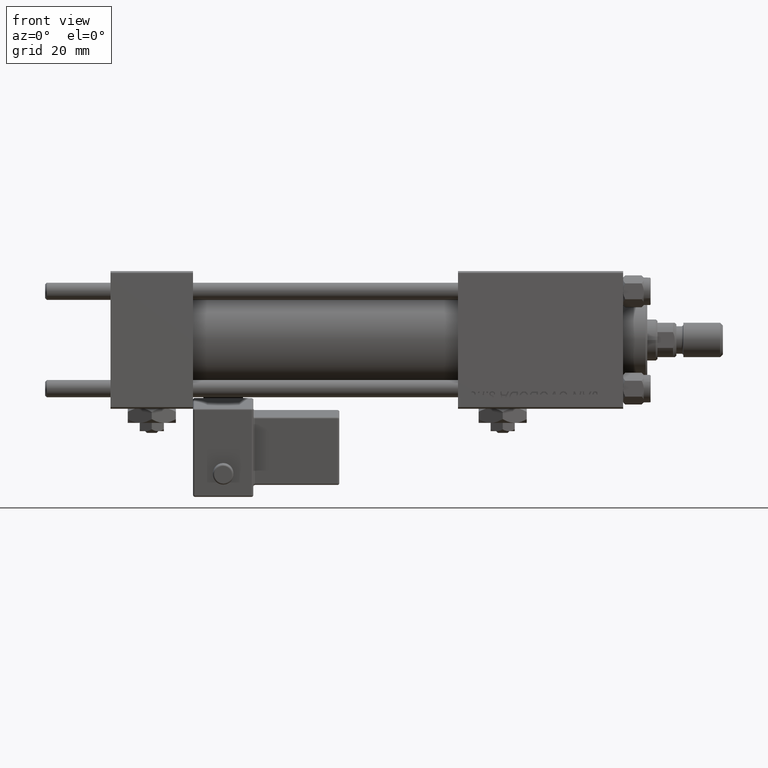
[diagram: clean part render]
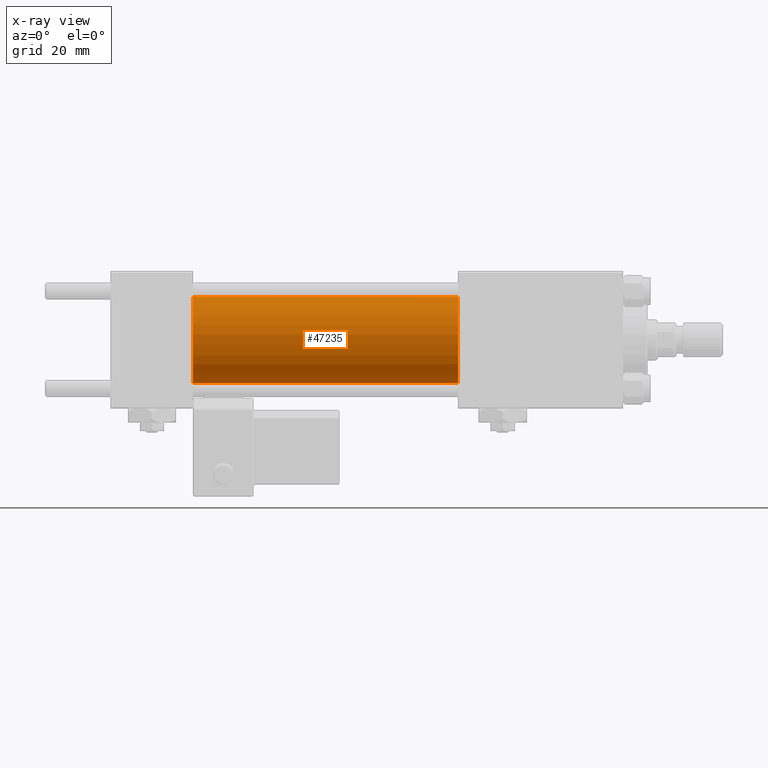
[diagram: x-ray — body ghosted, one internal face saturated and labeled with its STEP entity id]
A machine part, front view, then the same camera in x-ray: the body is ghosted and one INTERNAL B-rep face — a face not visible from any outside direction — is saturated and labeled: STEP entity #47235.
In plain terms, the highlighted cylindrical surface (partial cylindrical patch) has radius 12.5 mm, axis along (-1, -0, -0).
Its self-contained STEP definition (entity closure, byte-faithful):
#1038 = CARTESIAN_POINT ( 'NONE',  ( 101.0000000000000000, 0.000000000000000000, 12.49999999999999645 ) ) ;
#1207 = VERTEX_POINT ( 'NONE', #24627 ) ;
#1759 = CARTESIAN_POINT ( 'NONE',  ( 24.00000000000000000, 1.530808498934191127E-15, -12.49999999999999645 ) ) ;
#5326 = CYLINDRICAL_SURFACE ( 'NONE', #25744, 12.49999999999999645 ) ;
#7571 = ORIENTED_EDGE ( 'NONE', *, *, #46795, .F. ) ;
#10951 = CARTESIAN_POINT ( 'NONE',  ( 101.0000000000000000, 0.000000000000000000, 12.49999999999999645 ) ) ;
#11726 = CARTESIAN_POINT ( 'NONE',  ( 101.0000000000000000, 1.530808498934191127E-15, -12.49999999999999645 ) ) ;
#13883 = VERTEX_POINT ( 'NONE', #46046 ) ;
#15317 = EDGE_CURVE ( 'NONE', #13883, #19640, #43632, .T. ) ;
#17326 = DIRECTION ( 'NONE',  ( 1.000000000000000000, 0.000000000000000000, 0.000000000000000000 ) ) ;
#19640 = VERTEX_POINT ( 'NONE', #1759 ) ;
#21329 = VECTOR ( 'NONE', #44560, 1000.000000000000000 ) ;
#22073 = VERTEX_POINT ( 'NONE', #1038 ) ;
#23435 = AXIS2_PLACEMENT_3D ( 'NONE', #43595, #39468, #52136 ) ;
#24627 = CARTESIAN_POINT ( 'NONE',  ( 101.0000000000000000, 1.530808498934191127E-15, -12.49999999999999645 ) ) ;
#25744 = AXIS2_PLACEMENT_3D ( 'NONE', #34560, #52156, #26009 ) ;
#26009 = DIRECTION ( 'NONE',  ( 0.000000000000000000, 0.000000000000000000, 1.000000000000000000 ) ) ;
#28082 = EDGE_LOOP ( 'NONE', ( #31951, #35420, #30539, #7571 ) ) ;
#30539 = ORIENTED_EDGE ( 'NONE', *, *, #15317, .F. ) ;
#31951 = ORIENTED_EDGE ( 'NONE', *, *, #46579, .T. ) ;
#32950 = DIRECTION ( 'NONE',  ( -1.000000000000000000, -0.000000000000000000, -0.000000000000000000 ) ) ;
#33877 = CARTESIAN_POINT ( 'NONE',  ( 101.0000000000000000, 0.000000000000000000, 0.000000000000000000 ) ) ;
#34560 = CARTESIAN_POINT ( 'NONE',  ( 101.0000000000000000, 0.000000000000000000, 0.000000000000000000 ) ) ;
#35420 = ORIENTED_EDGE ( 'NONE', *, *, #48903, .T. ) ;
#39468 = DIRECTION ( 'NONE',  ( 1.000000000000000000, 0.000000000000000000, 0.000000000000000000 ) ) ;
#39767 = FACE_OUTER_BOUND ( 'NONE', #28082, .T. ) ;
#39785 = CIRCLE ( 'NONE', #47678, 12.49999999999999645 ) ;
#42535 = VECTOR ( 'NONE', #32950, 1000.000000000000000 ) ;
#43595 = CARTESIAN_POINT ( 'NONE',  ( 24.00000000000000000, 0.000000000000000000, 0.000000000000000000 ) ) ;
#43632 = CIRCLE ( 'NONE', #23435, 12.49999999999999645 ) ;
#44560 = DIRECTION ( 'NONE',  ( -1.000000000000000000, -0.000000000000000000, -0.000000000000000000 ) ) ;
#46046 = CARTESIAN_POINT ( 'NONE',  ( 24.00000000000000000, 0.000000000000000000, 12.49999999999999645 ) ) ;
#46579 = EDGE_CURVE ( 'NONE', #22073, #1207, #39785, .T. ) ;
#46795 = EDGE_CURVE ( 'NONE', #22073, #13883, #52831, .T. ) ;
#47063 = DIRECTION ( 'NONE',  ( 0.000000000000000000, 0.000000000000000000, -1.000000000000000000 ) ) ;
#47235 = ADVANCED_FACE ( 'NONE', ( #39767 ), #5326, .F. ) ;
#47678 = AXIS2_PLACEMENT_3D ( 'NONE', #33877, #17326, #47063 ) ;
#48903 = EDGE_CURVE ( 'NONE', #1207, #19640, #49465, .T. ) ;
#49465 = LINE ( 'NONE', #11726, #42535 ) ;
#52136 = DIRECTION ( 'NONE',  ( 0.000000000000000000, 0.000000000000000000, -1.000000000000000000 ) ) ;
#52156 = DIRECTION ( 'NONE',  ( -1.000000000000000000, -0.000000000000000000, -0.000000000000000000 ) ) ;
#52831 = LINE ( 'NONE', #10951, #21329 ) ;